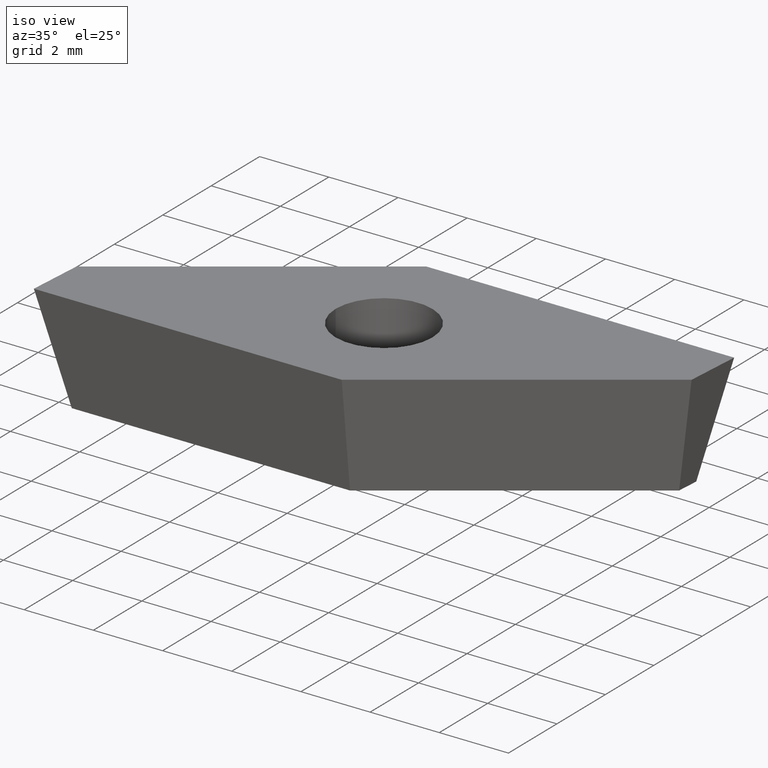
[diagram: clean part render]
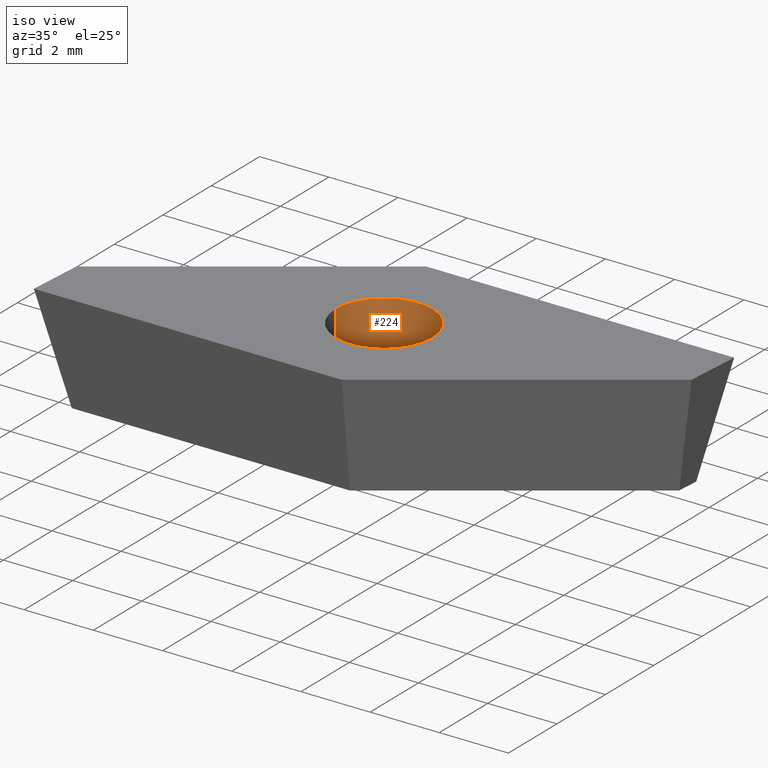
[diagram: same view with one face highlighted and labeled with its STEP entity id]
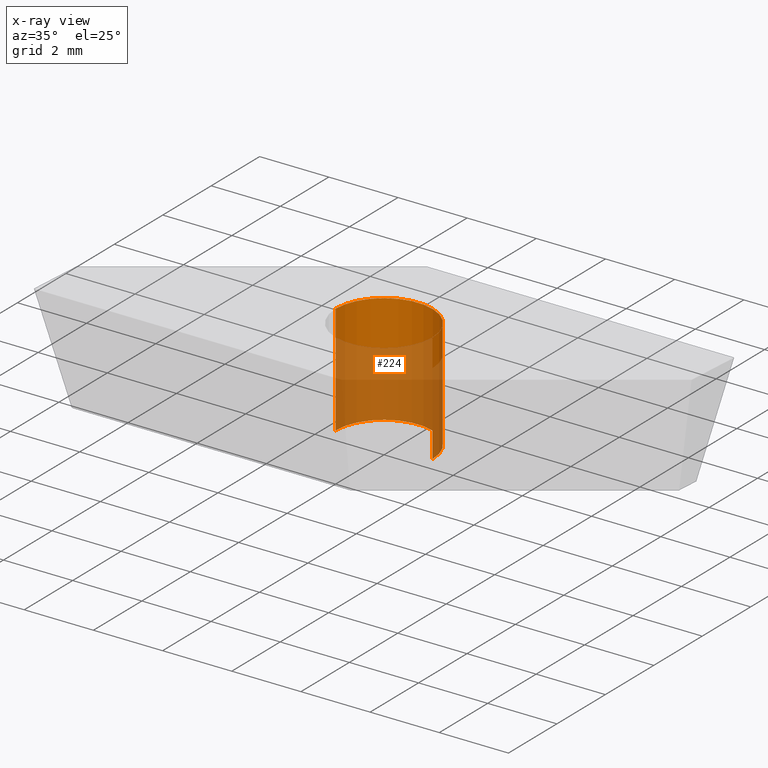
[diagram: x-ray of the same camera — body ghosted, the highlighted face saturated]
A machine part, iso view. The second image highlights one B-rep face of the part: STEP entity #224.
The next image is the same camera in x-ray: the body ghosted, the highlighted face saturated — about 64% of this face is hidden behind the body in this view.
In plain terms, the highlighted cylindrical surface (partial cylindrical patch) has radius 1.4 mm, axis along (-0, -0, 1).
Its self-contained STEP definition (entity closure, byte-faithful):
#9 = AXIS2_PLACEMENT_3D ( 'NONE', #133, #132, #345 ) ;
#10 = VERTEX_POINT ( 'NONE', #113 ) ;
#32 = CARTESIAN_POINT ( 'NONE',  ( -1.399999999999999900, 1.714505518806294100E-016, -3.180000000000000200 ) ) ;
#34 = DIRECTION ( 'NONE',  ( -0.0000000000000000000, -0.0000000000000000000, 1.000000000000000000 ) ) ;
#57 = VECTOR ( 'NONE', #34, 1000.000000000000000 ) ;
#70 = EDGE_CURVE ( 'NONE', #324, #216, #187, .T. ) ;
#80 = LINE ( 'NONE', #32, #57 ) ;
#95 = DIRECTION ( 'NONE',  ( -0.0000000000000000000, -0.0000000000000000000, 1.000000000000000000 ) ) ;
#100 = DIRECTION ( 'NONE',  ( -0.0000000000000000000, -0.0000000000000000000, 1.000000000000000000 ) ) ;
#106 = CARTESIAN_POINT ( 'NONE',  ( 1.399999999999999900, 0.0000000000000000000, -3.180000000000000200 ) ) ;
#113 = CARTESIAN_POINT ( 'NONE',  ( -1.399999999999999900, 1.714505518806294100E-016, -3.180000000000000200 ) ) ;
#115 = CARTESIAN_POINT ( 'NONE',  ( 1.399999999999999900, 0.0000000000000000000, -3.180000000000000200 ) ) ;
#118 = CYLINDRICAL_SURFACE ( 'NONE', #267, 1.399999999999999900 ) ;
#122 = DIRECTION ( 'NONE',  ( 1.000000000000000000, 0.0000000000000000000, 0.0000000000000000000 ) ) ;
#130 = FACE_OUTER_BOUND ( 'NONE', #299, .T. ) ;
#132 = DIRECTION ( 'NONE',  ( 0.0000000000000000000, 0.0000000000000000000, 1.000000000000000000 ) ) ;
#133 = CARTESIAN_POINT ( 'NONE',  ( 0.0000000000000000000, 0.0000000000000000000, 0.0000000000000000000 ) ) ;
#149 = CIRCLE ( 'NONE', #9, 1.399999999999999900 ) ;
#177 = EDGE_CURVE ( 'NONE', #324, #10, #180, .T. ) ;
#179 = VECTOR ( 'NONE', #100, 1000.000000000000000 ) ;
#180 = CIRCLE ( 'NONE', #181, 1.399999999999999900 ) ;
#181 = AXIS2_PLACEMENT_3D ( 'NONE', #241, #237, #245 ) ;
#185 = CARTESIAN_POINT ( 'NONE',  ( 1.399999999999999900, 0.0000000000000000000, 0.0000000000000000000 ) ) ;
#187 = LINE ( 'NONE', #115, #179 ) ;
#216 = VERTEX_POINT ( 'NONE', #185 ) ;
#221 = EDGE_CURVE ( 'NONE', #216, #240, #149, .T. ) ;
#224 = ADVANCED_FACE ( 'NONE', ( #130 ), #118, .F. ) ;
#237 = DIRECTION ( 'NONE',  ( 0.0000000000000000000, 0.0000000000000000000, 1.000000000000000000 ) ) ;
#240 = VERTEX_POINT ( 'NONE', #296 ) ;
#241 = CARTESIAN_POINT ( 'NONE',  ( 0.0000000000000000000, 0.0000000000000000000, -3.180000000000000200 ) ) ;
#245 = DIRECTION ( 'NONE',  ( 1.000000000000000000, 0.0000000000000000000, 0.0000000000000000000 ) ) ;
#267 = AXIS2_PLACEMENT_3D ( 'NONE', #353, #95, #122 ) ;
#283 = ORIENTED_EDGE ( 'NONE', *, *, #305, .F. ) ;
#288 = ORIENTED_EDGE ( 'NONE', *, *, #177, .F. ) ;
#290 = ORIENTED_EDGE ( 'NONE', *, *, #70, .T. ) ;
#291 = ORIENTED_EDGE ( 'NONE', *, *, #221, .T. ) ;
#296 = CARTESIAN_POINT ( 'NONE',  ( -1.399999999999999900, 1.714505518806294100E-016, 0.0000000000000000000 ) ) ;
#299 = EDGE_LOOP ( 'NONE', ( #283, #288, #290, #291 ) ) ;
#305 = EDGE_CURVE ( 'NONE', #10, #240, #80, .T. ) ;
#324 = VERTEX_POINT ( 'NONE', #106 ) ;
#345 = DIRECTION ( 'NONE',  ( 1.000000000000000000, 0.0000000000000000000, 0.0000000000000000000 ) ) ;
#353 = CARTESIAN_POINT ( 'NONE',  ( 0.0000000000000000000, 0.0000000000000000000, -3.180000000000000200 ) ) ;